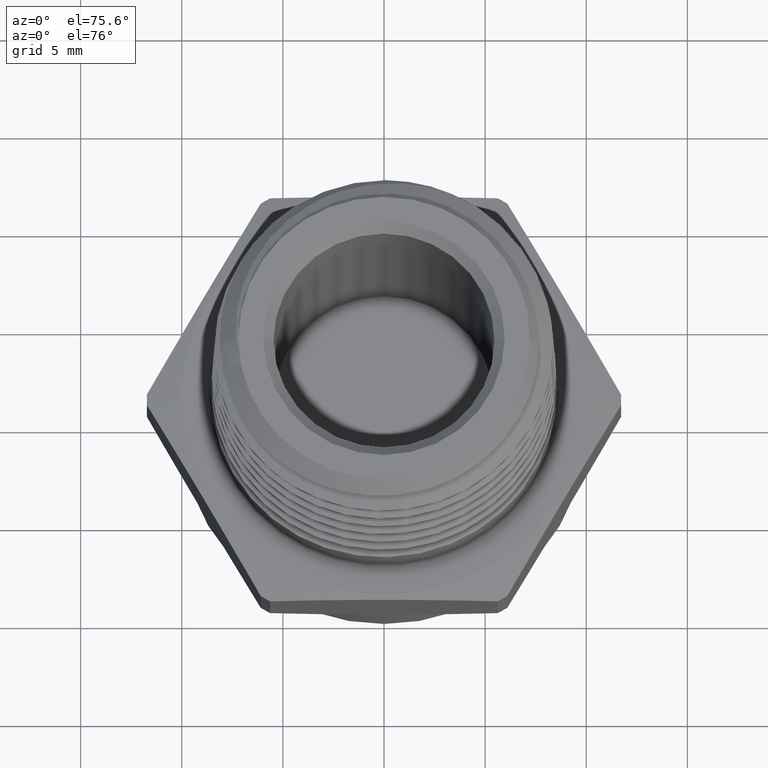
[diagram: clean part render]
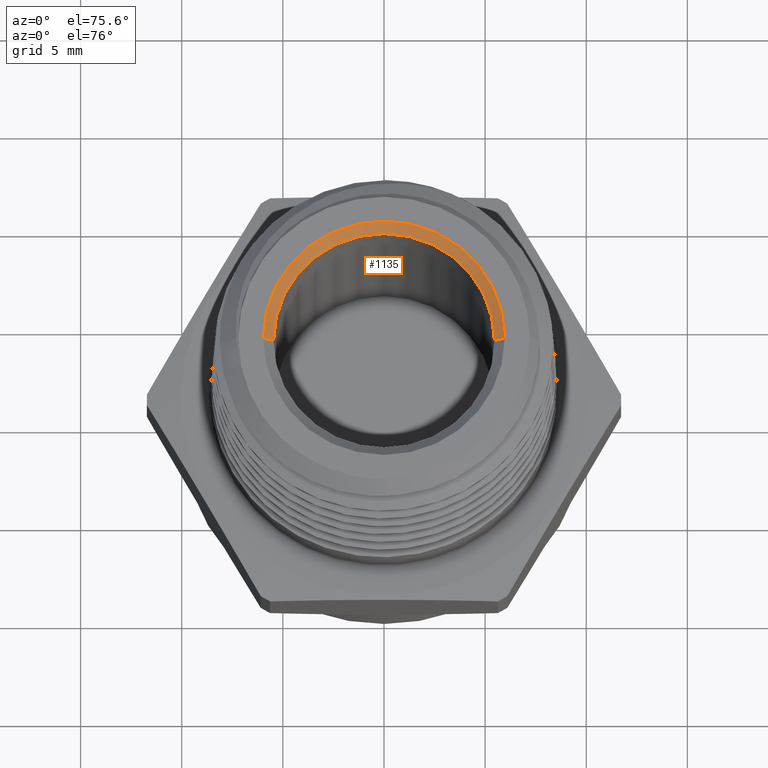
[diagram: same view with one face highlighted and labeled with its STEP entity id]
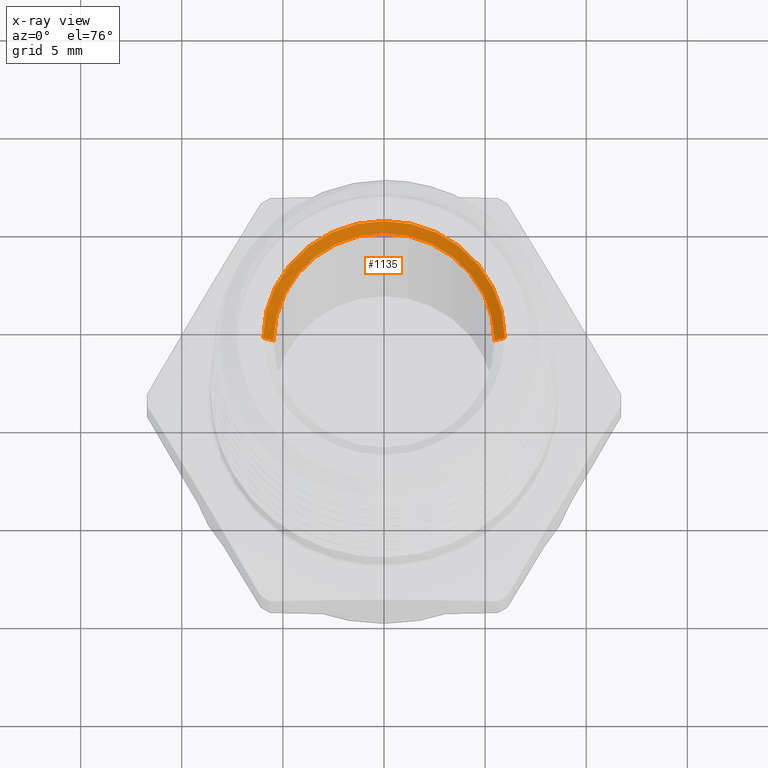
[diagram: x-ray of the same camera — body ghosted, the highlighted face saturated]
A machine part, auxiliary view. The second image highlights one B-rep face of the part: STEP entity #1135.
The next image is the same camera in x-ray: the body ghosted, the highlighted face saturated — about 0% of this face is hidden behind the body in this view.
In plain terms, the highlighted conical surface has half-angle 45 deg.
Its self-contained STEP definition (entity closure, byte-faithful):
#108 = FACE_OUTER_BOUND ( 'NONE', #1692, .T. ) ;
#119 = CONICAL_SURFACE ( 'NONE', #2824, 0.2149999999999999100, 0.7853981633974422800 ) ;
#153 = LINE ( 'NONE', #2169, #156 ) ;
#154 = LINE ( 'NONE', #2174, #159 ) ;
#156 = VECTOR ( 'NONE', #2141, 39.37007874015748900 ) ;
#159 = VECTOR ( 'NONE', #2137, 39.37007874015748900 ) ;
#454 = AXIS2_PLACEMENT_3D ( 'NONE', #5082, #5083, #5084 ) ;
#458 = AXIS2_PLACEMENT_3D ( 'NONE', #5098, #5099, #5100 ) ;
#704 = VERTEX_POINT ( 'NONE', #3284 ) ;
#1135 = ADVANCED_FACE ( 'NONE', ( #108 ), #119, .F. ) ;
#1617 = CIRCLE ( 'NONE', #454, 0.2349999999999996000 ) ;
#1621 = CIRCLE ( 'NONE', #458, 0.2149999999999999100 ) ;
#1692 = EDGE_LOOP ( 'NONE', ( #3059, #3071, #3069, #5428 ) ) ;
#2137 = DIRECTION ( 'NONE',  ( 0.7071067811865431300, 0.0000000000000000000, 0.7071067811865516800 ) ) ;
#2141 = DIRECTION ( 'NONE',  ( -0.7071067811865431300, 8.659560562354879900E-017, 0.7071067811865516800 ) ) ;
#2169 = CARTESIAN_POINT ( 'NONE',  ( -0.2149999999999999100, 2.632990618166808500E-017, 0.5700000000000000600 ) ) ;
#2174 = CARTESIAN_POINT ( 'NONE',  ( 0.2149999999999999100, 0.0000000000000000000, 0.5700000000000000600 ) ) ;
#2316 = EDGE_CURVE ( 'NONE', #3409, #3406, #153, .T. ) ;
#2318 = EDGE_CURVE ( 'NONE', #704, #3407, #154, .T. ) ;
#2824 = AXIS2_PLACEMENT_3D ( 'NONE', #3195, #3196, #3194 ) ;
#3059 = ORIENTED_EDGE ( 'NONE', *, *, #2316, .F. ) ;
#3069 = ORIENTED_EDGE ( 'NONE', *, *, #2318, .T. ) ;
#3071 = ORIENTED_EDGE ( 'NONE', *, *, #5553, .T. ) ;
#3194 = DIRECTION ( 'NONE',  ( 1.000000000000000000, 0.0000000000000000000, 0.0000000000000000000 ) ) ;
#3195 = CARTESIAN_POINT ( 'NONE',  ( -1.224646799147304700E-018, 0.0000000000000000000, 0.5700000000000000600 ) ) ;
#3196 = DIRECTION ( 'NONE',  ( -2.296162711943753400E-033, 0.0000000000000000000, 1.000000000000000000 ) ) ;
#3284 = CARTESIAN_POINT ( 'NONE',  ( 0.2149999999999999100, 2.632990618166808500E-017, 0.5700000000000000600 ) ) ;
#3406 = VERTEX_POINT ( 'NONE', #3530 ) ;
#3407 = VERTEX_POINT ( 'NONE', #3531 ) ;
#3409 = VERTEX_POINT ( 'NONE', #3533 ) ;
#3530 = CARTESIAN_POINT ( 'NONE',  ( -0.2349999999999996000, 2.877919977996274900E-017, 0.5899999999999999700 ) ) ;
#3531 = CARTESIAN_POINT ( 'NONE',  ( 0.2349999999999996000, 0.0000000000000000000, 0.5899999999999999700 ) ) ;
#3533 = CARTESIAN_POINT ( 'NONE',  ( -0.2149999999999999100, 0.0000000000000000000, 0.5700000000000000600 ) ) ;
#5082 = CARTESIAN_POINT ( 'NONE',  ( -1.224646799147304700E-018, 0.0000000000000000000, 0.5899999999999999700 ) ) ;
#5083 = DIRECTION ( 'NONE',  ( 2.296162711943753400E-033, -0.0000000000000000000, -1.000000000000000000 ) ) ;
#5084 = DIRECTION ( 'NONE',  ( -1.000000000000000000, 0.0000000000000000000, 0.0000000000000000000 ) ) ;
#5098 = CARTESIAN_POINT ( 'NONE',  ( -1.224646799147304700E-018, 0.0000000000000000000, 0.5700000000000000600 ) ) ;
#5099 = DIRECTION ( 'NONE',  ( 2.296162711943753400E-033, -0.0000000000000000000, -1.000000000000000000 ) ) ;
#5100 = DIRECTION ( 'NONE',  ( -1.000000000000000000, 0.0000000000000000000, 0.0000000000000000000 ) ) ;
#5428 = ORIENTED_EDGE ( 'NONE', *, *, #5549, .F. ) ;
#5549 = EDGE_CURVE ( 'NONE', #3406, #3407, #1617, .T. ) ;
#5553 = EDGE_CURVE ( 'NONE', #3409, #704, #1621, .T. ) ;